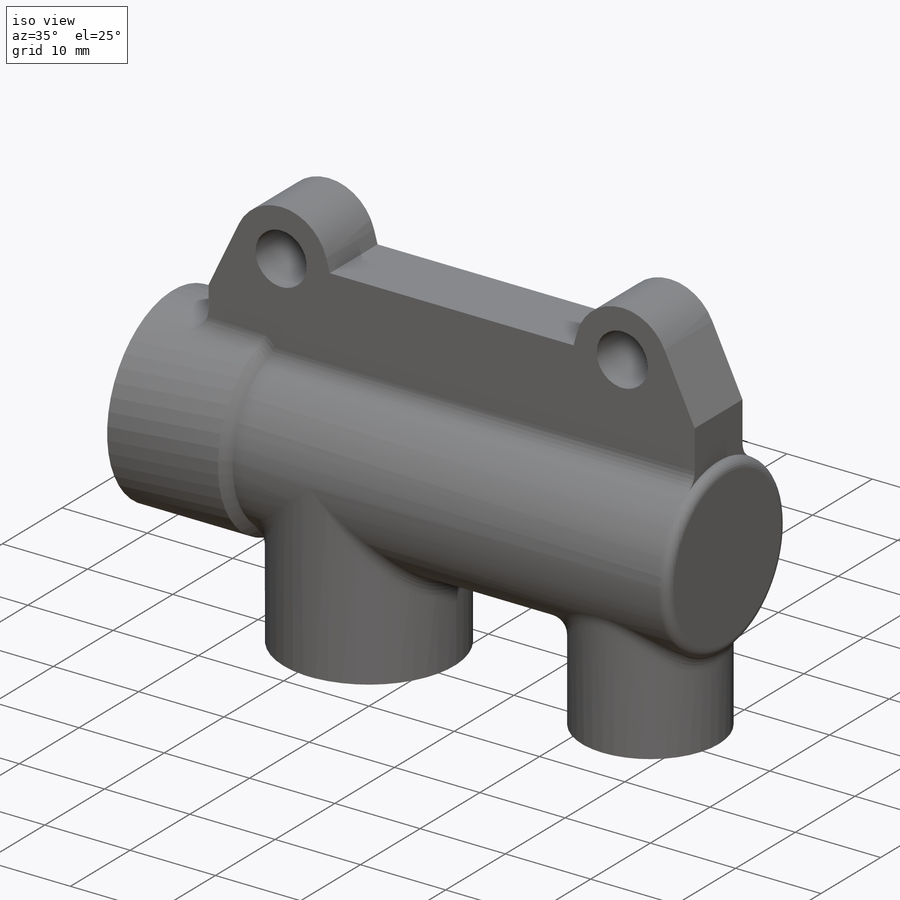
[diagram: iso view]
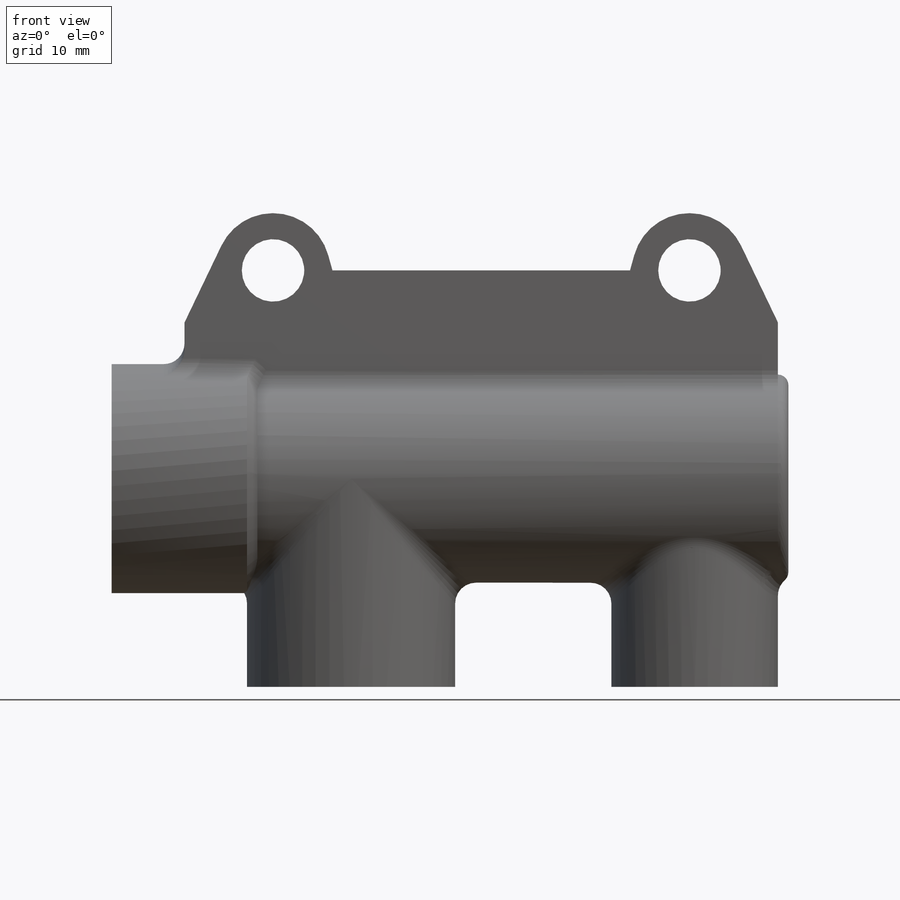
[diagram: front view]
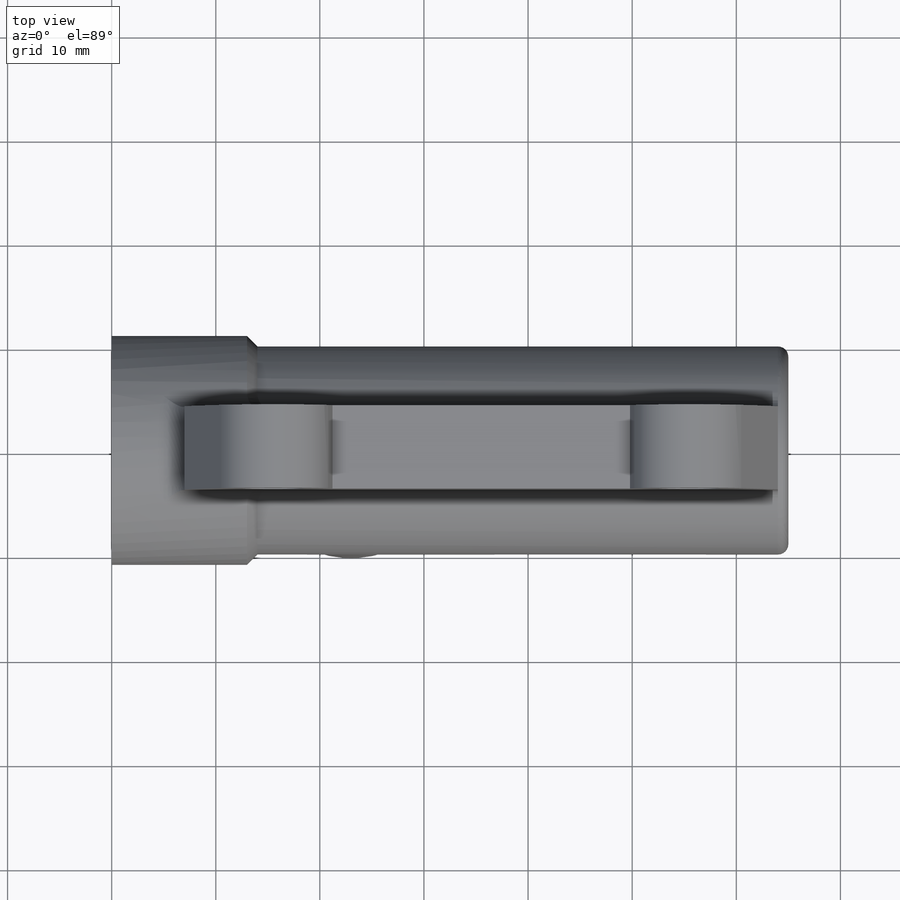
[diagram: top view]
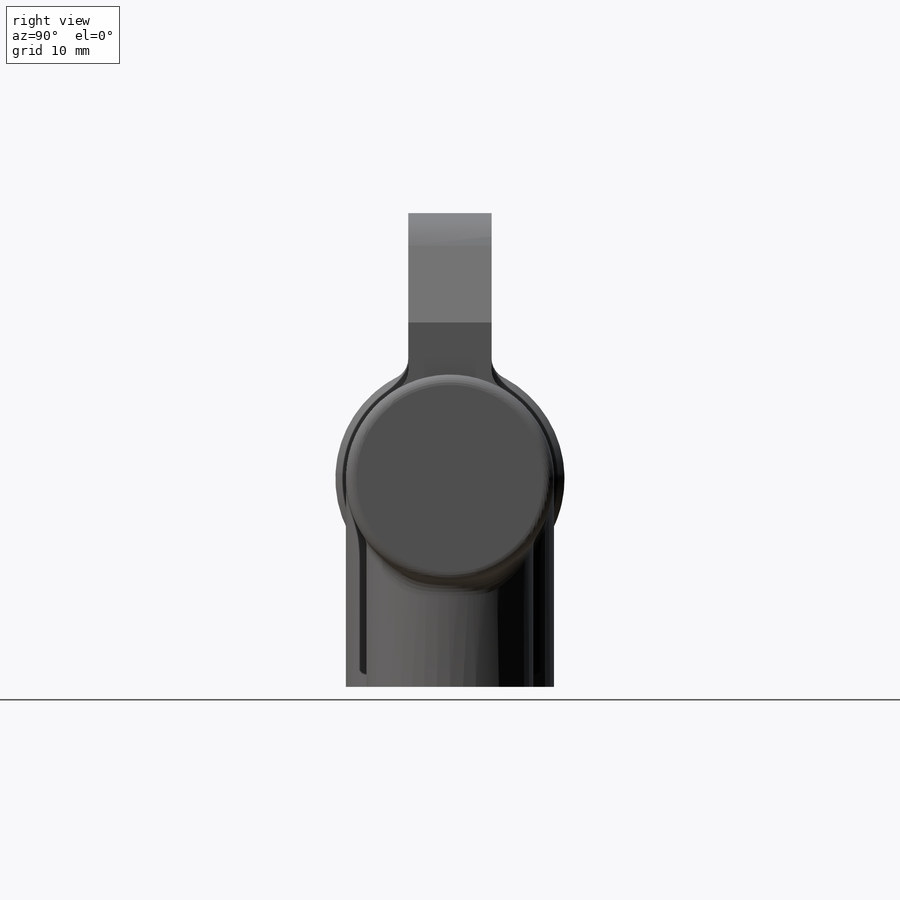
[diagram: right view]
SOLIDWORKS PART (.sldprt)
format: sldprt  version: not decoded by parser v0  size: 382,976 bytes
history: native  units: mm
features: sketch x5, extrude x3, fillet x2, material x1, revolve x1, plane x1, cut_extrude x1 (+11 scaffold rows collapsed)
feature tree (25):
  scaffold x11  (default folders/planes/origin — collapsed)
  material  "Material <não especificado>"
  sketch  "Esboço1"  dims[c1.D1=22.0mm c1.D2=20.0mm c1.D3=13.0mm c1.D4=14.0mm c1.D5=13.0mm c2.D5=45.0deg c3.D5=13.0mm c3.D4=13.0mm c4.D4=45.0deg c4.D5=65.0mm c4.D6=19.5mm c4.D7=64.0mm]
  revolve  "Revolução1"  Angle=360deg
  fillet  "Filete1"  Radius=1mm
  plane  "Plano1"  Offset=20mm
  sketch  "Esboço3"  dims[c1.D1=20.0mm c1.D3=16.0mm c1.D4=20.0mm c1.D2=23.0mm c2.D4=33.0mm c2.D5=56.0mm c3.D4=56.0mm]
  extrude  "Ressalto-extrusão1"  [1 undecoded]
  sketch  "Esboço4"  dims[D1=18.0mm D2=12.0mm]
  cut_extrude  "Corte-extrusão1"  [1 undecoded]
  sketch  "Esboço5"  dims[c1.D1=~2.973543mm c1.D2=~2.973543mm c1.D3=~5.339319mm c1.D5=5.5mm c1.D6=6.0mm c2.D1=15.5mm c2.D2=40.0mm c2.D3=40.0mm c2.D4=28.58mm c2.D7=5.0mm]
  extrude  "Ressalto-extrusão2"  Depth=8mm
  sketch  "Esboço6"  dims[D1=0.0mm]
  extrude  "Ressalto-extrusão3"  [1 undecoded]
  fillet  "Filete2"  Radius=2mm
decode coverage: 9 of 12 modeling features carry decoded parameters
note: ~ marks probable driven/reference dimensions
note: 3 parameter values undecoded
summary: no parameter record found for 3 features
note: suppression state not decoded; provenance and decode notes live in map.json
